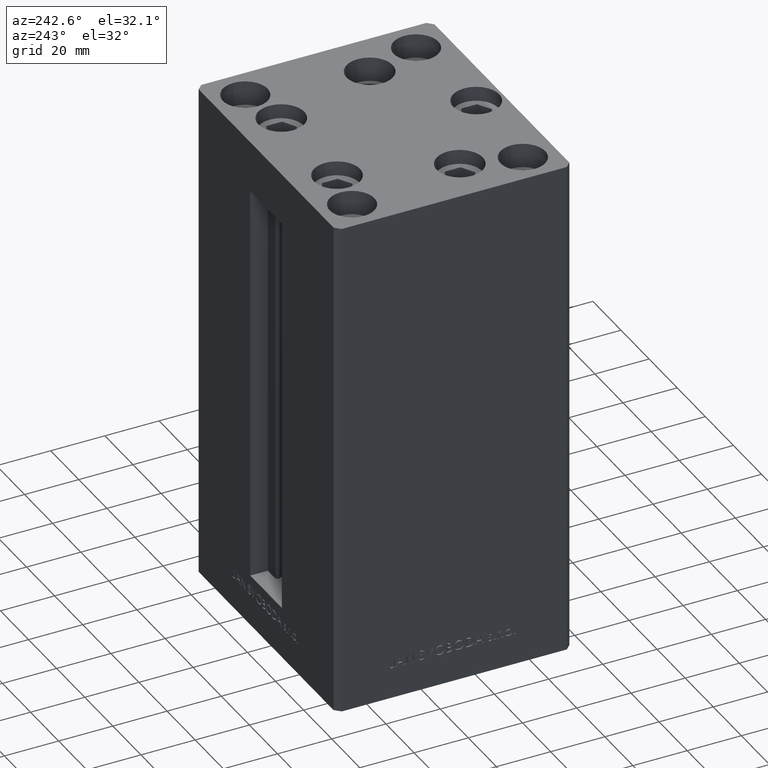
[diagram: clean part render]
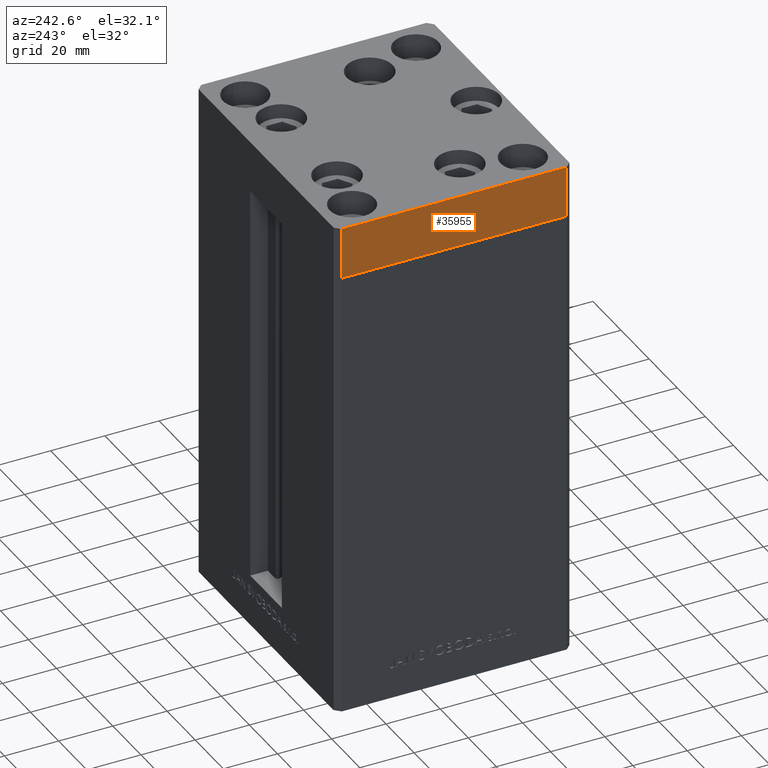
[diagram: same view with one face highlighted and labeled with its STEP entity id]
A machine part, auxiliary view. The second image highlights one B-rep face of the part: STEP entity #35955.
In plain terms, the highlighted planar face has unit normal (-1, -0, 0).
Its self-contained STEP definition (entity closure, byte-faithful):
#366 = VERTEX_POINT ( 'NONE', #33747 ) ;
#1329 = CARTESIAN_POINT ( 'NONE',  ( -50.00000000000000711, 41.49999999999995026, -19.00000000000000000 ) ) ;
#1573 = PLANE ( 'NONE',  #4494 ) ;
#2114 = ORIENTED_EDGE ( 'NONE', *, *, #14420, .T. ) ;
#2319 = ORIENTED_EDGE ( 'NONE', *, *, #14478, .F. ) ;
#2638 = VERTEX_POINT ( 'NONE', #27080 ) ;
#3656 = CARTESIAN_POINT ( 'NONE',  ( -50.00000000000000000, -41.50000000000000000, -19.00000000000000000 ) ) ;
#4494 = AXIS2_PLACEMENT_3D ( 'NONE', #1329, #46296, #16747 ) ;
#5384 = LINE ( 'NONE', #35200, #24631 ) ;
#10203 = CARTESIAN_POINT ( 'NONE',  ( -50.00000000000000711, 41.49999999999995026, 0.000000000000000000 ) ) ;
#10840 = VERTEX_POINT ( 'NONE', #10203 ) ;
#12986 = DIRECTION ( 'NONE',  ( 0.000000000000000000, 0.000000000000000000, 1.000000000000000000 ) ) ;
#14030 = VECTOR ( 'NONE', #17849, 1000.000000000000000 ) ;
#14420 = EDGE_CURVE ( 'NONE', #17741, #366, #37671, .T. ) ;
#14478 = EDGE_CURVE ( 'NONE', #10840, #366, #5384, .T. ) ;
#16747 = DIRECTION ( 'NONE',  ( 8.360113137237628665E-17, -1.000000000000000000, 0.000000000000000000 ) ) ;
#17741 = VERTEX_POINT ( 'NONE', #18279 ) ;
#17849 = DIRECTION ( 'NONE',  ( 8.360113137237628665E-17, -1.000000000000000000, 0.000000000000000000 ) ) ;
#18279 = CARTESIAN_POINT ( 'NONE',  ( -50.00000000000000000, -41.50000000000000000, -19.00000000000000000 ) ) ;
#18828 = DIRECTION ( 'NONE',  ( 0.000000000000000000, 0.000000000000000000, 1.000000000000000000 ) ) ;
#21583 = LINE ( 'NONE', #36704, #14030 ) ;
#22084 = ORIENTED_EDGE ( 'NONE', *, *, #35547, .T. ) ;
#24418 = CARTESIAN_POINT ( 'NONE',  ( -50.00000000000000711, 41.49999999999995026, -19.00000000000000000 ) ) ;
#24631 = VECTOR ( 'NONE', #38900, 1000.000000000000000 ) ;
#27080 = CARTESIAN_POINT ( 'NONE',  ( -50.00000000000000711, 41.49999999999995026, -19.00000000000000000 ) ) ;
#31489 = VECTOR ( 'NONE', #12986, 1000.000000000000000 ) ;
#33747 = CARTESIAN_POINT ( 'NONE',  ( -50.00000000000000000, -41.50000000000000000, 0.000000000000000000 ) ) ;
#35126 = EDGE_CURVE ( 'NONE', #2638, #10840, #35581, .T. ) ;
#35127 = FACE_OUTER_BOUND ( 'NONE', #40008, .T. ) ;
#35200 = CARTESIAN_POINT ( 'NONE',  ( -50.00000000000000711, 41.49999999999995026, 0.000000000000000000 ) ) ;
#35547 = EDGE_CURVE ( 'NONE', #2638, #17741, #21583, .T. ) ;
#35581 = LINE ( 'NONE', #24418, #31489 ) ;
#35955 = ADVANCED_FACE ( 'NONE', ( #35127 ), #1573, .T. ) ;
#36704 = CARTESIAN_POINT ( 'NONE',  ( -50.00000000000000711, 41.49999999999995026, -19.00000000000000000 ) ) ;
#37671 = LINE ( 'NONE', #3656, #46019 ) ;
#38900 = DIRECTION ( 'NONE',  ( 8.360113137237628665E-17, -1.000000000000000000, 0.000000000000000000 ) ) ;
#40008 = EDGE_LOOP ( 'NONE', ( #2319, #40381, #22084, #2114 ) ) ;
#40381 = ORIENTED_EDGE ( 'NONE', *, *, #35126, .F. ) ;
#46019 = VECTOR ( 'NONE', #18828, 1000.000000000000000 ) ;
#46296 = DIRECTION ( 'NONE',  ( -1.000000000000000000, -8.360113137237628665E-17, 0.000000000000000000 ) ) ;